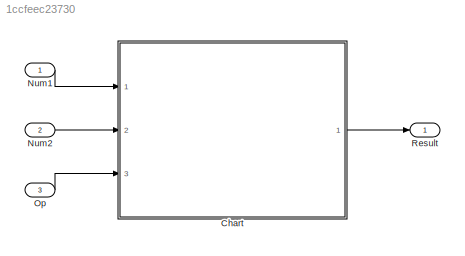
MODEL slx_1ccfeec23730
KIND model
CONFIG AbsTol = auto
CONFIG EnableMultiTasking = off
CONFIG FixedStep = auto
CONFIG MaxStep = auto
CONFIG MinStep = auto
CONFIG RelTol = 1e-3
CONFIG SampleTimeConstraint = Unconstrained
CONFIG SolverName = VariableStepAuto
CONFIG StartTime = 0.0
CONFIG StopTime = 10.0
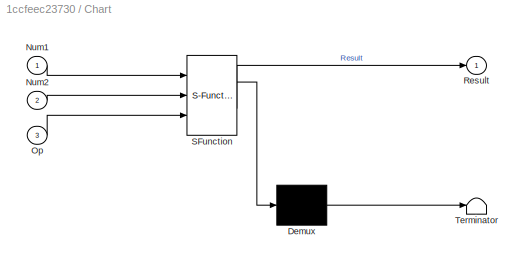
BLOCK [SubSystem] Chart
  ErrorFcn = Stateflow.Translate.translate
  PermitHierarchicalResolution = ExplicitOnly
  Ports = [3, 1]
  RequestExecContextInheritance = off
  SFBlockType = Chart
  TreatAsAtomicUnit = on
BLOCK [Demux] Chart/ Demux 
  Outputs = 1
  Ports = [1, 1]
BLOCK [S-Function] Chart/ SFunction 
  EnableBusSupport = off
  FunctionName = sf_sfun
  PortCounts = [3 2]
  Ports = [3, 2]
  SFcnIsStateOwnerBlock = off
  SFunctionDeploymentMode = off
  Tag = Stateflow S-Function 3
BLOCK [Terminator] Chart/ Terminator 
BLOCK [Inport] Chart/Num1
BLOCK [Inport] Chart/Num2
  Port = 2
BLOCK [Inport] Chart/Op
  Port = 3
BLOCK [Outport] Chart/Result
BLOCK [Inport] Num1
BLOCK [Inport] Num2
  Port = 2
BLOCK [Inport] Op
  Port = 3
BLOCK [Outport] Result
LINE Chart:1 -> Result:1
LINE Num1:1 -> Chart:1
LINE Num2:1 -> Chart:2
LINE Op:1 -> Chart:3
CHART Chart states=5 transitions=24
  STATE_LABEL 'Add(Num1,Num2)'
  STATE_LABEL '{Result = Num1+Num2;}'
  STATE_LABEL 'Calculator'
  STATE_LABEL '[Op == 0]'
  STATE_LABEL '{Add(Num1,Num2);}'
  STATE_LABEL '[Op == 1]'
  STATE_LABEL '{Sub(Num1,Num2);}'
  STATE_LABEL '[Op == 2]'
  STATE_LABEL '{Div(Num1,Num2);}'
  STATE_LABEL '{Mul(Num1,Num2);}'
  STATE_LABEL 'Sub(Num1,Num2)'
  STATE_LABEL '{Result=Num1-Num2;}'
  STATE_LABEL 'Mul(Num1,Num2)'
  STATE_LABEL '{Result=Num1*Num2;}'
  STATE_LABEL 'Div(Num1,Num2)'
  STATE_LABEL '[Num2==0]'
  STATE_LABEL '{Result=Num1/Num2;}'
  STATE_LABEL '{Result=-1;}'
CHART  states=0 transitions=0
